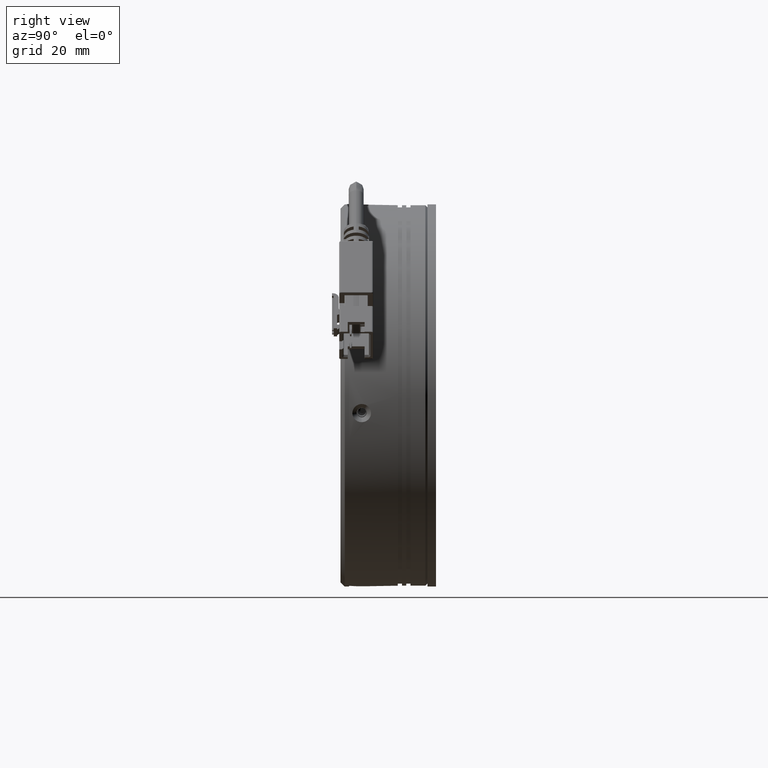
[diagram: clean part render]
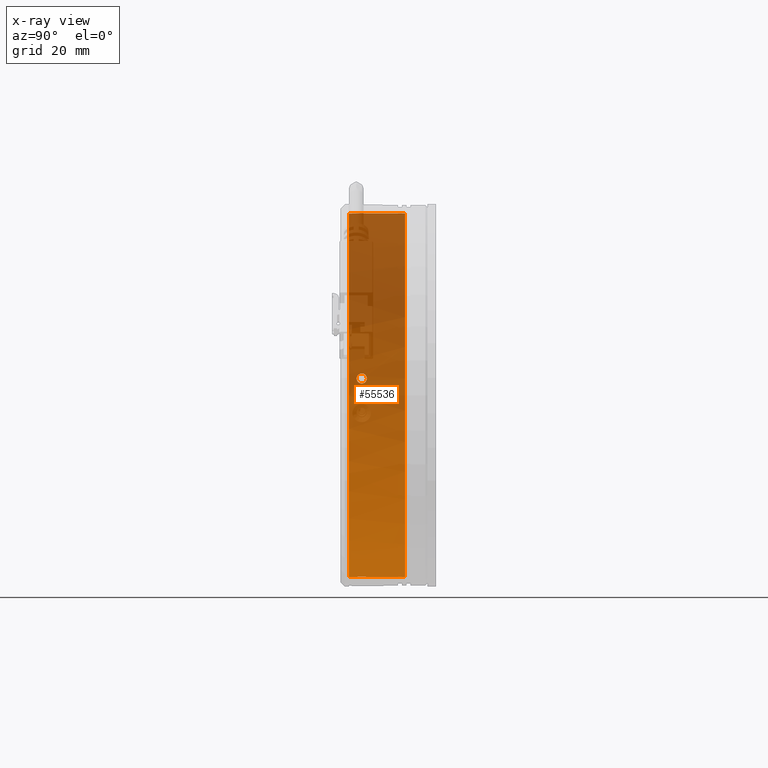
[diagram: x-ray — body ghosted, one internal face saturated and labeled with its STEP entity id]
A machine part, right view, then the same camera in x-ray: the body is ghosted and one INTERNAL B-rep face — a face not visible from any outside direction — is saturated and labeled: STEP entity #55536.
In plain terms, the highlighted cylindrical surface (partial cylindrical patch) has radius 43 mm, axis along (0, -1, 0).
Its self-contained STEP definition (entity closure, byte-faithful):
#1471 = CARTESIAN_POINT ( 'NONE',  ( -58.92255973357057300, 20.74122319490911800, -46.51422482449459700 ) ) ;
#1874 = CARTESIAN_POINT ( 'NONE',  ( -96.82017544590824800, 22.67865957059294500, 0.02360433792865126000 ) ) ;
#2475 = CARTESIAN_POINT ( 'NONE',  ( -96.80299503536001300, 31.67025355006042300, 0.2084669134009927100 ) ) ;
#2840 = CARTESIAN_POINT ( 'NONE',  ( -96.79106553186635200, 20.27887245401148100, 0.3369031482287027100 ) ) ;
#7083 = VERTEX_POINT ( 'NONE', #61379 ) ;
#7179 = EDGE_CURVE ( 'NONE', #51293, #54125, #77432, .T. ) ;
#7397 = CARTESIAN_POINT ( 'NONE',  ( -58.12601096211489700, 22.67876601230220500, -46.59884367926780900 ) ) ;
#7843 = CARTESIAN_POINT ( 'NONE',  ( -59.01087473947404800, 22.08325179611435700, -46.50383318590866100 ) ) ;
#8020 = CARTESIAN_POINT ( 'NONE',  ( -50.05418630618800800, 31.67876601226952400, 39.02157142818928300 ) ) ;
#8273 = CARTESIAN_POINT ( 'NONE',  ( -50.01186446922403000, 20.27876601230222100, 39.01766022332921600 ) ) ;
#8717 = CARTESIAN_POINT ( 'NONE',  ( -50.61412590828523900, 20.43028188157337900, 39.06959796847463200 ) ) ;
#8819 = CARTESIAN_POINT ( 'NONE',  ( -50.02597110220634800, 31.66174075438107800, 39.01897093010302300 ) ) ;
#9211 = CARTESIAN_POINT ( 'NONE',  ( -96.67792894938493500, 21.47876601230221300, 1.373558083239857300 ) ) ;
#9410 = B_SPLINE_CURVE_WITH_KNOTS ( 'NONE', 3,
 ( #105213, #32389, #126198, #63773, #1471, #74251, #11969, #84707, #22432, #95133 ),
 .UNSPECIFIED., .F., .F.,
 ( 4, 2, 2, 2, 4 ),
 ( 0.001874681895584048800, 0.002343352658888708300, 0.002812023422193367400, 0.003280694185498026500, 0.003749364948802686000 ),
 .UNSPECIFIED. ) ;
#9728 = EDGE_CURVE ( 'NONE', #7083, #130508, #51468, .T. ) ;
#11666 = ORIENTED_EDGE ( 'NONE', *, *, #9728, .F. ) ;
#11969 = CARTESIAN_POINT ( 'NONE',  ( -58.56973981762219200, 20.43043387962256600, -46.55359069222154700 ) ) ;
#12347 = CARTESIAN_POINT ( 'NONE',  ( -96.77577747926216000, 22.64784701081818200, 0.4918155024610730300 ) ) ;
#12875 = CARTESIAN_POINT ( 'NONE',  ( -96.67792894938493500, 21.47876601230221300, 1.373558083239857300 ) ) ;
#13206 = ORIENTED_EDGE ( 'NONE', *, *, #7179, .F. ) ;
#13309 = CARTESIAN_POINT ( 'NONE',  ( -96.83368982609593400, 20.30968501378623600, -0.1314728156897529400 ) ) ;
#15579 = CARTESIAN_POINT ( 'NONE',  ( -96.80954510899997000, 31.67876601095487400, 0.1379331521673202200 ) ) ;
#15779 = CARTESIAN_POINT ( 'NONE',  ( -50.01186446922403000, 18.47876601230220900, 39.01766022332921600 ) ) ;
#18156 = VERTEX_POINT ( 'NONE', #26096 ) ;
#18308 = CARTESIAN_POINT ( 'NONE',  ( -59.16152130652403000, 21.63723929282797800, -46.48581046226726000 ) ) ;
#19206 = CARTESIAN_POINT ( 'NONE',  ( -50.96763672397546700, 20.74053969547610900, 39.09586889298326200 ) ) ;
#22432 = CARTESIAN_POINT ( 'NONE',  ( -58.12601086481245000, 20.27876601230218900, -46.59884368830860500 ) ) ;
#22807 = CARTESIAN_POINT ( 'NONE',  ( -96.73142323909094400, 22.43982374782998000, 0.9123639815030434300 ) ) ;
#23765 = CARTESIAN_POINT ( 'NONE',  ( -96.86757582513840200, 20.51770827677443900, -0.5529939431728031500 ) ) ;
#24210 = CARTESIAN_POINT ( 'NONE',  ( -57.98232387409957100, 31.66174075440059700, -46.61219425272943100 ) ) ;
#24807 = CARTESIAN_POINT ( 'NONE',  ( -51.05703077552374200, 22.08324953597088200, 39.10197360459402200 ) ) ;
#25809 = B_SPLINE_CURVE_WITH_KNOTS ( 'NONE', 3,
 ( #12875, #105229, #106617, #44202, #117086, #54717, #127571, #65123, #2840, #75647, #13309, #86083, #23765, #96534, #34197, #107057, #44659, #117564 ),
 .UNSPECIFIED., .F., .F.,
 ( 4, 2, 2, 2, 2, 2, 2, 2, 4 ),
 ( 0.0000000000000000000, 0.0004688944468967884300, 0.0009377888937935768600, 0.001406683340690365400, 0.001875577787587153700, 0.002344472234483942000, 0.002813366681380730800, 0.003282261128277519100, 0.003751155575174307400 ),
 .UNSPECIFIED. ) ;
#26096 = CARTESIAN_POINT ( 'NONE',  ( -96.80562336960153400, 31.65322862557684400, 0.1802548467408904300 ) ) ;
#26397 = ORIENTED_EDGE ( 'NONE', *, *, #60598, .F. ) ;
#28388 = CARTESIAN_POINT ( 'NONE',  ( -51.20826733921226300, 21.47876601230221300, 39.11200347787633500 ) ) ;
#29123 = ORIENTED_EDGE ( 'NONE', *, *, #78637, .F. ) ;
#29247 = CARTESIAN_POINT ( 'NONE',  ( -57.96821724117763400, 22.67876601230220100, -46.61350495949558600 ) ) ;
#29333 = ORIENTED_EDGE ( 'NONE', *, *, #73791, .F. ) ;
#29601 = CARTESIAN_POINT ( 'NONE',  ( -51.17647236101910800, 21.16282169609336000, 39.10997229015048000 ) ) ;
#30172 = CIRCLE ( 'NONE', #70888, 43.00000000000000000 ) ;
#30796 = CARTESIAN_POINT ( 'NONE',  ( -57.96821724117763400, 10.11989054203920400, -46.61350495949558600 ) ) ;
#32389 = CARTESIAN_POINT ( 'NONE',  ( -59.16152130652403000, 21.32029263391762800, -46.48581046226725300 ) ) ;
#32886 = ORIENTED_EDGE ( 'NONE', *, *, #91286, .T. ) ;
#33221 = CARTESIAN_POINT ( 'NONE',  ( -53.99004085520083900, 18.47876601230220900, -3.797922368083184200 ) ) ;
#33245 = CARTESIAN_POINT ( 'NONE',  ( -96.69597854806619400, 22.08394947930590700, 1.222687703565670700 ) ) ;
#33577 = CARTESIAN_POINT ( 'NONE',  ( -96.80693415343803600, 31.66174075437405800, 0.1661473843850216100 ) ) ;
#34197 = CARTESIAN_POINT ( 'NONE',  ( -96.88991127892792600, 20.87358254529853200, -0.8645356997651765200 ) ) ;
#35219 = CARTESIAN_POINT ( 'NONE',  ( -50.74749785432500500, 22.43767469557632300, 39.07978924203617800 ) ) ;
#35240 = LINE ( 'NONE', #30796, #87333 ) ;
#35848 = DIRECTION ( 'NONE',  ( 0.0000000000000000000, -1.000000000000000000, 0.0000000000000000000 ) ) ;
#39377 = CARTESIAN_POINT ( 'NONE',  ( -50.01186446922126500, 31.65322812541536400, 39.01766022335910800 ) ) ;
#40081 = CARTESIAN_POINT ( 'NONE',  ( -51.20826733921226300, 21.47876601230221300, 39.11200347787633500 ) ) ;
#40209 = B_SPLINE_CURVE_WITH_KNOTS ( 'NONE', 3,
 ( #96953, #24210, #45093, #117978 ),
 .UNSPECIFIED., .F., .F.,
 ( 4, 4 ),
 ( 0.0000000000000000000, 1.000000000000000000 ),
 .UNSPECIFIED. ) ;
#40232 = CARTESIAN_POINT ( 'NONE',  ( -50.01186446922403000, 20.27876601230222100, 39.01766022332921600 ) ) ;
#40297 = EDGE_CURVE ( 'NONE', #111768, #103137, #35240, .T. ) ;
#41675 = B_SPLINE_CURVE_WITH_KNOTS ( 'NONE', 3,
 ( #102075, #112118, #8819, #81602 ),
 .UNSPECIFIED., .F., .F.,
 ( 4, 4 ),
 ( 0.0000000000000000000, 1.000000000000000000 ),
 .UNSPECIFIED. ) ;
#42519 = VERTEX_POINT ( 'NONE', #40232 ) ;
#42725 = DIRECTION ( 'NONE',  ( 0.0000000000000000000, -1.000000000000000000, 0.0000000000000000000 ) ) ;
#42789 = CARTESIAN_POINT ( 'NONE',  ( -96.80168086924969400, 31.67876601095492000, 0.2225729403210405200 ) ) ;
#43237 = CARTESIAN_POINT ( 'NONE',  ( -96.88992728075425000, 22.08351277420170100, -0.8647715254671489700 ) ) ;
#43570 = CARTESIAN_POINT ( 'NONE',  ( -96.80954510899997000, 31.67876601095487400, 0.1379331521673202200 ) ) ;
#43658 = DIRECTION ( 'NONE',  ( -0.09251572990643718000, 0.0000000000000000000, -0.9957112230561023800 ) ) ;
#43688 = CARTESIAN_POINT ( 'NONE',  ( -96.67792894938493500, 21.63731515919229800, 1.373558083239857100 ) ) ;
#44115 = CARTESIAN_POINT ( 'NONE',  ( -57.96821724117605600, 31.65322812544198800, -46.61350495949732700 ) ) ;
#44202 = CARTESIAN_POINT ( 'NONE',  ( -96.69595082793580300, 20.87401925040273900, 1.222922440470592700 ) ) ;
#44659 = CARTESIAN_POINT ( 'NONE',  ( -96.89996670116035200, 21.32021693622073900, -1.016148852094848500 ) ) ;
#45093 = CARTESIAN_POINT ( 'NONE',  ( -57.99642985931386400, 31.67025338339706800, -46.61087657429839500 ) ) ;
#45098 = CARTESIAN_POINT ( 'NONE',  ( -50.01186446922403000, 10.11989054203920400, 39.01766022332921600 ) ) ;
#45715 = CARTESIAN_POINT ( 'NONE',  ( -50.32653876319675100, 22.64691947902560200, 39.04597531702494700 ) ) ;
#45820 = LINE ( 'NONE', #45098, #125668 ) ;
#48246 = ORIENTED_EDGE ( 'NONE', *, *, #87302, .F. ) ;
#48774 = ORIENTED_EDGE ( 'NONE', *, *, #61146, .T. ) ;
#50282 = EDGE_CURVE ( 'NONE', #111768, #63469, #40209, .T. ) ;
#51293 = VERTEX_POINT ( 'NONE', #8020 ) ;
#51468 = LINE ( 'NONE', #90894, #100317 ) ;
#52482 = DIRECTION ( 'NONE',  ( 0.0000000000000000000, -1.000000000000000000, 0.0000000000000000000 ) ) ;
#52840 = VECTOR ( 'NONE', #52482, 1000.000000000000000 ) ;
#53268 = CARTESIAN_POINT ( 'NONE',  ( -96.89996670116035200, 21.63731512378893000, -1.016148852094681500 ) ) ;
#53734 = CARTESIAN_POINT ( 'NONE',  ( -96.86772184911062300, 22.43800111069277400, -0.5549714051471990000 ) ) ;
#54125 = VERTEX_POINT ( 'NONE', #42789 ) ;
#54150 = EDGE_CURVE ( 'NONE', #96452, #60854, #60242, .T. ) ;
#54336 = CARTESIAN_POINT ( 'NONE',  ( -96.80562336960153400, 31.65322862557684400, 0.1802548467408904300 ) ) ;
#54717 = CARTESIAN_POINT ( 'NONE',  ( -96.73120243993423600, 20.51953091391165500, 0.9143344957996301100 ) ) ;
#55536 = ADVANCED_FACE ( 'NONE', ( #124565, #69116 ), #111433, .F. ) ;
#56173 = CARTESIAN_POINT ( 'NONE',  ( -50.01186446922403000, 22.67876601230220100, 39.01766022332921600 ) ) ;
#59127 = EDGE_CURVE ( 'NONE', #62069, #135001, #90241, .T. ) ;
#59687 = CARTESIAN_POINT ( 'NONE',  ( -58.56973787702020900, 22.52725014303103300, -46.55359423419172100 ) ) ;
#60242 = B_SPLINE_CURVE_WITH_KNOTS ( 'NONE', 3,
 ( #105624, #53268, #63716, #43237, #116122, #53734, #126597, #64162, #1874, #74676, #12347, #85109, #22807, #95543, #33245, #106080, #43688, #116566 ),
 .UNSPECIFIED., .F., .F.,
 ( 4, 2, 2, 2, 2, 2, 2, 2, 4 ),
 ( 0.003751155575174307400, 0.004220050126775160200, 0.004688944678376012900, 0.005157839229976866500, 0.005626733781577719300, 0.006095628333178572000, 0.006564522884779424800, 0.007033417436380277500, 0.007502311987981130300 ),
 .UNSPECIFIED. ) ;
#60598 = EDGE_CURVE ( 'NONE', #103151, #135001, #94275, .T. ) ;
#60854 = VERTEX_POINT ( 'NONE', #9211 ) ;
#61146 = EDGE_CURVE ( 'NONE', #42519, #74748, #45820, .T. ) ;
#61379 = CARTESIAN_POINT ( 'NONE',  ( -57.96821724117763400, 20.27876601230222100, -46.61350495949558600 ) ) ;
#62069 = VERTEX_POINT ( 'NONE', #39377 ) ;
#62907 = CARTESIAN_POINT ( 'NONE',  ( -50.01186446922403000, 10.11989054203920400, 39.01766022332921600 ) ) ;
#63351 = EDGE_CURVE ( 'NONE', #130508, #74748, #30172, .T. ) ;
#63469 = VERTEX_POINT ( 'NONE', #66389 ) ;
#63716 = CARTESIAN_POINT ( 'NONE',  ( -96.89797751519418500, 21.79289201016769400, -0.9849878198004277100 ) ) ;
#63773 = CARTESIAN_POINT ( 'NONE',  ( -59.01102577601075400, 20.87428248863354300, -46.50381579064270500 ) ) ;
#64162 = CARTESIAN_POINT ( 'NONE',  ( -96.83387729119319000, 22.64712468859792000, -0.1337000241704109400 ) ) ;
#64745 = CARTESIAN_POINT ( 'NONE',  ( -96.80431268817427800, 31.66174108781863300, 0.1943612039414953100 ) ) ;
#65123 = CARTESIAN_POINT ( 'NONE',  ( -96.77555139905590000, 20.31040733600649900, 0.4940391230490607800 ) ) ;
#66173 = CARTESIAN_POINT ( 'NONE',  ( -51.20826733921217800, 21.63723939068742300, 39.11200347787632100 ) ) ;
#66389 = CARTESIAN_POINT ( 'NONE',  ( -58.01053519152217300, 31.67876601233793500, -46.60955192468390600 ) ) ;
#69116 = FACE_OUTER_BOUND ( 'NONE', #84784, .T. ) ;
#69343 = ORIENTED_EDGE ( 'NONE', *, *, #50282, .T. ) ;
#70149 = CARTESIAN_POINT ( 'NONE',  ( -58.92203728123876500, 22.21699232912831700, -46.51428535387514500 ) ) ;
#70888 = AXIS2_PLACEMENT_3D ( 'NONE', #33221, #106053, #43658 ) ;
#71033 = CARTESIAN_POINT ( 'NONE',  ( -50.32457401830372800, 20.30994591517771800, 39.04581059721307700 ) ) ;
#71711 = CARTESIAN_POINT ( 'NONE',  ( -96.89996670116036600, 21.47876601230221300, -1.016148852094764400 ) ) ;
#72521 = B_SPLINE_CURVE_WITH_KNOTS ( 'NONE', 3,
 ( #122109, #7397, #90571, #59687, #132551, #70149, #7843, #80624, #18308, #91002 ),
 .UNSPECIFIED., .F., .F.,
 ( 4, 2, 2, 2, 4 ),
 ( 6.938893903907228400E-018, 0.0004686704738960174000, 0.0009373409477920278500, 0.001406011421688038200, 0.001874681895584048800 ),
 .UNSPECIFIED. ) ;
#73723 = DIRECTION ( 'NONE',  ( -0.09251572990643718000, 0.0000000000000000000, -0.9957112230561023800 ) ) ;
#73791 = EDGE_CURVE ( 'NONE', #103137, #118475, #72521, .T. ) ;
#74251 = CARTESIAN_POINT ( 'NONE',  ( -58.70270433818497900, 20.51985732902811700, -46.53903888285432100 ) ) ;
#74676 = CARTESIAN_POINT ( 'NONE',  ( -96.79122204696321300, 22.67887190185259900, 0.3352826852380393400 ) ) ;
#74748 = VERTEX_POINT ( 'NONE', #15779 ) ;
#75263 = CARTESIAN_POINT ( 'NONE',  ( -96.80168086924969400, 31.67876601095492000, 0.2225729403210405200 ) ) ;
#75647 = CARTESIAN_POINT ( 'NONE',  ( -96.82003073102922000, 20.27866012275181600, 0.02522589732732118500 ) ) ;
#76519 = DIRECTION ( 'NONE',  ( 0.0000000000000000000, -1.000000000000000000, 0.0000000000000000000 ) ) ;
#76686 = CARTESIAN_POINT ( 'NONE',  ( -51.20826733921226300, 21.47876601230221300, 39.11200347787633500 ) ) ;
#77270 = ORIENTED_EDGE ( 'NONE', *, *, #122434, .T. ) ;
#77432 = CIRCLE ( 'NONE', #101840, 43.00000000000000000 ) ;
#78637 = EDGE_CURVE ( 'NONE', #42519, #103151, #134458, .T. ) ;
#80505 = CIRCLE ( 'NONE', #103521, 43.00000000000000000 ) ;
#80624 = CARTESIAN_POINT ( 'NONE',  ( -59.12989638319632500, 21.79471032851107600, -46.48967188511356600 ) ) ;
#81484 = CARTESIAN_POINT ( 'NONE',  ( -50.74681618080435900, 20.51933151601326000, 39.07973788981537700 ) ) ;
#81602 = CARTESIAN_POINT ( 'NONE',  ( -50.01186446922126500, 31.65322812541536400, 39.01766022335910800 ) ) ;
#81687 = EDGE_CURVE ( 'NONE', #18156, #54125, #103015, .T. ) ;
#84707 = CARTESIAN_POINT ( 'NONE',  ( -58.28272155314756700, 20.31061254557882000, -46.58336041487204700 ) ) ;
#84784 = EDGE_LOOP ( 'NONE', ( #77270, #106199, #26397, #29123, #48774, #100309, #11666, #92095, #29333, #91261, #69343, #48246, #32886, #88426, #13206 ) ) ;
#85109 = CARTESIAN_POINT ( 'NONE',  ( -96.74581203594623000, 22.52778271042315000, 0.7808482312444399200 ) ) ;
#86083 = CARTESIAN_POINT ( 'NONE',  ( -96.85748812416029800, 20.42974931418126900, -0.4210785599531053900 ) ) ;
#87087 = CARTESIAN_POINT ( 'NONE',  ( -51.17713777555357500, 21.79273877106668100, 39.11001627802897200 ) ) ;
#87302 = EDGE_CURVE ( 'NONE', #120352, #63469, #80505, .T. ) ;
#87333 = VECTOR ( 'NONE', #114137, 1000.000000000000000 ) ;
#88426 = ORIENTED_EDGE ( 'NONE', *, *, #81687, .T. ) ;
#90241 = LINE ( 'NONE', #62907, #52840 ) ;
#90571 = CARTESIAN_POINT ( 'NONE',  ( -58.28076009375503500, 22.64758610942670500, -46.58356049526212000 ) ) ;
#90894 = CARTESIAN_POINT ( 'NONE',  ( -57.96821724117763400, 10.11989054203920400, -46.61350495949558600 ) ) ;
#91002 = CARTESIAN_POINT ( 'NONE',  ( -59.16152130652402300, 21.47876601230221300, -46.48581046226725300 ) ) ;
#91261 = ORIENTED_EDGE ( 'NONE', *, *, #40297, .F. ) ;
#91272 = B_SPLINE_CURVE_WITH_KNOTS ( 'NONE', 3,
 ( #43570, #95427, #33577, #106437 ),
 .UNSPECIFIED., .F., .F.,
 ( 4, 4 ),
 ( 0.0000000000000000000, 1.000000000000000000 ),
 .UNSPECIFIED. ) ;
#91286 = EDGE_CURVE ( 'NONE', #120352, #18156, #91272, .T. ) ;
#91907 = CARTESIAN_POINT ( 'NONE',  ( -51.05687911961158000, 20.87428022849007200, 39.10196287542770900 ) ) ;
#92095 = ORIENTED_EDGE ( 'NONE', *, *, #109100, .F. ) ;
#94126 = CARTESIAN_POINT ( 'NONE',  ( -53.99004085520083900, 10.11989054203920400, -3.797922368083184200 ) ) ;
#94275 = B_SPLINE_CURVE_WITH_KNOTS ( 'NONE', 3,
 ( #76686, #66173, #87087, #24807, #97572, #35219, #108073, #45715, #118605, #56173 ),
 .UNSPECIFIED., .F., .F.,
 ( 4, 2, 2, 2, 4 ),
 ( 0.001874681895584072200, 0.002343352658888732600, 0.002812023422193392500, 0.003280694185498052900, 0.003749364948802713300 ),
 .UNSPECIFIED. ) ;
#95133 = CARTESIAN_POINT ( 'NONE',  ( -57.96821724117763400, 20.27876601230222100, -46.61350495949558600 ) ) ;
#95356 = CARTESIAN_POINT ( 'NONE',  ( -59.16152130652402300, 21.47876601230221300, -46.48581046226725300 ) ) ;
#95427 = CARTESIAN_POINT ( 'NONE',  ( -96.80823788860273300, 31.67025338333813500, 0.1520401031102260900 ) ) ;
#95543 = CARTESIAN_POINT ( 'NONE',  ( -96.70628407551390600, 22.21600132329108800, 1.135142675484311500 ) ) ;
#96452 = VERTEX_POINT ( 'NONE', #71711 ) ;
#96534 = CARTESIAN_POINT ( 'NONE',  ( -96.88391128082305700, 20.74153070131335100, -0.7765906267907313200 ) ) ;
#96953 = CARTESIAN_POINT ( 'NONE',  ( -57.96821724117605600, 31.65322812544198800, -46.61350495949732700 ) ) ;
#97572 = CARTESIAN_POINT ( 'NONE',  ( -50.96816138460680900, 22.21630882969532200, 39.09590565528512200 ) ) ;
#98194 = CARTESIAN_POINT ( 'NONE',  ( -53.99004085520083900, 31.67876601230221200, -3.797922368083184200 ) ) ;
#100309 = ORIENTED_EDGE ( 'NONE', *, *, #63351, .F. ) ;
#100317 = VECTOR ( 'NONE', #101418, 1000.000000000000000 ) ;
#101418 = DIRECTION ( 'NONE',  ( 0.0000000000000000000, -1.000000000000000000, 0.0000000000000000000 ) ) ;
#101840 = AXIS2_PLACEMENT_3D ( 'NONE', #105092, #42725, #115596 ) ;
#102075 = CARTESIAN_POINT ( 'NONE',  ( -50.05418630618800800, 31.67876601226952400, 39.02157142818928300 ) ) ;
#102429 = CARTESIAN_POINT ( 'NONE',  ( -51.20826733921236200, 21.32029273177708000, 39.11200347787634300 ) ) ;
#103015 = B_SPLINE_CURVE_WITH_KNOTS ( 'NONE', 3,
 ( #54336, #64745, #2475, #75263 ),
 .UNSPECIFIED., .F., .F.,
 ( 4, 4 ),
 ( 1.958528762031069600E-005, 1.000000000000000000 ),
 .UNSPECIFIED. ) ;
#103137 = VERTEX_POINT ( 'NONE', #29247 ) ;
#103151 = VERTEX_POINT ( 'NONE', #28388 ) ;
#103521 = AXIS2_PLACEMENT_3D ( 'NONE', #98194, #35848, #108689 ) ;
#105092 = CARTESIAN_POINT ( 'NONE',  ( -53.99004085520083900, 31.67876601230221200, -3.797922368083184200 ) ) ;
#105213 = CARTESIAN_POINT ( 'NONE',  ( -59.16152130652402300, 21.47876601230221300, -46.48581046226725300 ) ) ;
#105229 = CARTESIAN_POINT ( 'NONE',  ( -96.67792894938492100, 21.32021690081612400, 1.373558083239857300 ) ) ;
#105624 = CARTESIAN_POINT ( 'NONE',  ( -96.89996670116036600, 21.47876601230221300, -1.016148852094764400 ) ) ;
#106053 = DIRECTION ( 'NONE',  ( -0.0000000000000000000, 1.000000000000000000, -0.0000000000000000000 ) ) ;
#106080 = CARTESIAN_POINT ( 'NONE',  ( -96.68172236076956900, 21.79317404277602000, 1.342502706317228100 ) ) ;
#106199 = ORIENTED_EDGE ( 'NONE', *, *, #59127, .T. ) ;
#106437 = CARTESIAN_POINT ( 'NONE',  ( -96.80562336960153400, 31.65322862557684400, 0.1802548467408904300 ) ) ;
#106617 = CARTESIAN_POINT ( 'NONE',  ( -96.68171485812949600, 21.16464001443673500, 1.342563992037908900 ) ) ;
#107057 = CARTESIAN_POINT ( 'NONE',  ( -96.89797359824909500, 21.16435798182838800, -0.9849262009176985600 ) ) ;
#107988 = ORIENTED_EDGE ( 'NONE', *, *, #54150, .F. ) ;
#108073 = CARTESIAN_POINT ( 'NONE',  ( -50.61412846823255100, 22.52709814498186000, 39.06959484466949600 ) ) ;
#108689 = DIRECTION ( 'NONE',  ( -0.09251572990643718000, 0.0000000000000000000, -0.9957112230561023800 ) ) ;
#109100 = EDGE_CURVE ( 'NONE', #118475, #7083, #9410, .T. ) ;
#111433 = CYLINDRICAL_SURFACE ( 'NONE', #133940, 43.00000000000000000 ) ;
#111647 = EDGE_LOOP ( 'NONE', ( #124781, #107988 ) ) ;
#111768 = VERTEX_POINT ( 'NONE', #44115 ) ;
#112118 = CARTESIAN_POINT ( 'NONE',  ( -50.04007838290424100, 31.67025338335974300, 39.02027466521391800 ) ) ;
#114137 = DIRECTION ( 'NONE',  ( 0.0000000000000000000, -1.000000000000000000, 0.0000000000000000000 ) ) ;
#115596 = DIRECTION ( 'NONE',  ( -0.09251572990643718000, 0.0000000000000000000, -0.9957112230561023800 ) ) ;
#116122 = CARTESIAN_POINT ( 'NONE',  ( -96.88385327291162200, 22.21661702246569800, -0.7758180287625345800 ) ) ;
#116566 = CARTESIAN_POINT ( 'NONE',  ( -96.67792894938493500, 21.47876601230221300, 1.373558083239857300 ) ) ;
#117086 = CARTESIAN_POINT ( 'NONE',  ( -96.70636940243962000, 20.74091500213872800, 1.134372615780986100 ) ) ;
#117564 = CARTESIAN_POINT ( 'NONE',  ( -96.89996670116036600, 21.47876601230221300, -1.016148852094764400 ) ) ;
#117978 = CARTESIAN_POINT ( 'NONE',  ( -58.01053519152217300, 31.67876601233793500, -46.60955192468390600 ) ) ;
#118475 = VERTEX_POINT ( 'NONE', #95356 ) ;
#118605 = CARTESIAN_POINT ( 'NONE',  ( -50.16965809285910900, 22.67876601230220100, 39.03232149451623200 ) ) ;
#120352 = VERTEX_POINT ( 'NONE', #15579 ) ;
#122109 = CARTESIAN_POINT ( 'NONE',  ( -57.96821724117763400, 22.67876601230220100, -46.61350495949558600 ) ) ;
#122434 = EDGE_CURVE ( 'NONE', #51293, #62069, #41675, .T. ) ;
#124565 = FACE_BOUND ( 'NONE', #111647, .T. ) ;
#124781 = ORIENTED_EDGE ( 'NONE', *, *, #132334, .F. ) ;
#125220 = DIRECTION ( 'NONE',  ( 0.0000000000000000000, -1.000000000000000000, 0.0000000000000000000 ) ) ;
#125668 = VECTOR ( 'NONE', #76519, 1000.000000000000000 ) ;
#126198 = CARTESIAN_POINT ( 'NONE',  ( -59.13055851118587500, 21.16479325353773400, -46.48959252541622100 ) ) ;
#126597 = CARTESIAN_POINT ( 'NONE',  ( -96.85751770825967800, 22.52740794203347700, -0.4214931607460495900 ) ) ;
#127571 = CARTESIAN_POINT ( 'NONE',  ( -96.74576472843563100, 20.43012408257095600, 0.7812611852804995900 ) ) ;
#130508 = VERTEX_POINT ( 'NONE', #134330 ) ;
#132247 = CARTESIAN_POINT ( 'NONE',  ( -50.01186446922403000, 22.67876601230220100, 39.01766022332921600 ) ) ;
#132334 = EDGE_CURVE ( 'NONE', #60854, #96452, #25809, .T. ) ;
#132551 = CARTESIAN_POINT ( 'NONE',  ( -58.70202487274481500, 22.43820050859115500, -46.53911399979600100 ) ) ;
#132966 = CARTESIAN_POINT ( 'NONE',  ( -50.16965819016129300, 20.27876601230221400, 39.03232150355699300 ) ) ;
#133940 = AXIS2_PLACEMENT_3D ( 'NONE', #94126, #125220, #73723 ) ;
#134330 = CARTESIAN_POINT ( 'NONE',  ( -57.96821724117763400, 18.47876601230220900, -46.61350495949558600 ) ) ;
#134458 = B_SPLINE_CURVE_WITH_KNOTS ( 'NONE', 3,
 ( #8273, #132966, #71033, #8717, #81484, #19206, #91907, #29601, #102429, #40081 ),
 .UNSPECIFIED., .F., .F.,
 ( 4, 2, 2, 2, 4 ),
 ( 0.0000000000000000000, 0.0004686704738960180500, 0.0009373409477920360900, 0.001406011421688054200, 0.001874681895584072200 ),
 .UNSPECIFIED. ) ;
#135001 = VERTEX_POINT ( 'NONE', #132247 ) ;